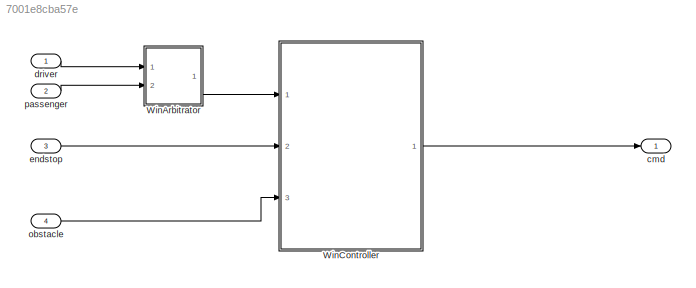
MODEL slx_7001e8cba57e
KIND model
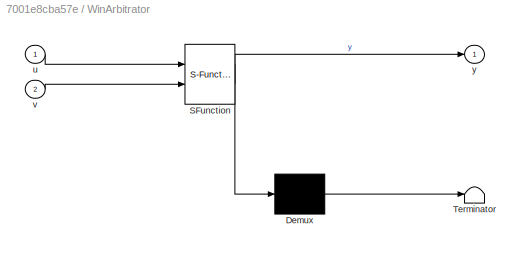
BLOCK [SubSystem] WinArbitrator
  ErrorFcn = Stateflow.Translate.translate
  PermitHierarchicalResolution = ExplicitOnly
  Ports = [2, 1]
  RTWSystemCode = Reusable function
  RequestExecContextInheritance = off
  SFBlockType = Truth Table
  TreatAsAtomicUnit = on
BLOCK [Demux] WinArbitrator/ Demux 
  Outputs = 1
  Ports = [1, 1]
BLOCK [S-Function] WinArbitrator/ SFunction 
  EnableBusSupport = on
  FunctionName = sf_sfun
  PortCounts = [2 2]
  Ports = [2, 2]
  Tag = Stateflow S-Function PWC 2
BLOCK [Terminator] WinArbitrator/ Terminator 
BLOCK [Inport] WinArbitrator/u
  IconDisplay = Port number
BLOCK [Inport] WinArbitrator/v
  IconDisplay = Port number
  Port = 2
BLOCK [Outport] WinArbitrator/y
  IconDisplay = Port number
BLOCK [ModelReference] WinController
  CopyOfModelName = power_window_controller.slx
  DefaultDataLogging = on
  ModelNameDialog = power_window_controller.slx
  ModelReferenceVersion = 1.53
  Ports = [3, 1]
BLOCK [Outport] cmd
  IconDisplay = Port number
  OutDataTypeStr = uint8
BLOCK [Inport] driver
  IconDisplay = Port number
  OutDataTypeStr = uint8
BLOCK [Inport] endstop
  IconDisplay = Port number
  OutDataTypeStr = boolean
  Port = 3
BLOCK [Inport] obstacle
  IconDisplay = Port number
  OutDataTypeStr = boolean
  Port = 4
BLOCK [Inport] passenger
  IconDisplay = Port number
  OutDataTypeStr = uint8
  Port = 2
LINE WinArbitrator:1 -> WinController:1
LINE WinController:1 -> cmd:1
LINE driver:1 -> WinArbitrator:1
LINE endstop:1 -> WinController:2
LINE obstacle:1 -> WinController:3
LINE passenger:1 -> WinArbitrator:2
CHART WinArbitrator states=1 transitions=1
  STATE_LABEL 'tt_blk_kernel'
  STATE_LABEL 'SCRIPT:\nfunction y = fcn(u, v)\n\naVarTruthTableCondition_1 = false;\naVarTruthTableCondition_2 = false;\naVarTruthTableCondition_3 = false;\naVarTruthTableCondition_4 = false;\n\n\n% Example condition 1\n\naVarTruthTableCondition_1 = logical(u == 0 && v == 0);\n\n% Example condition 2\n\naVarTruthTableCondition_2 = logical(u == 0 && v == 1);\n\n\naVarTruthTableCondition_3 = logical(u == 1 && v == 0);\n\n\naVarTruthT...<+536ch>'
